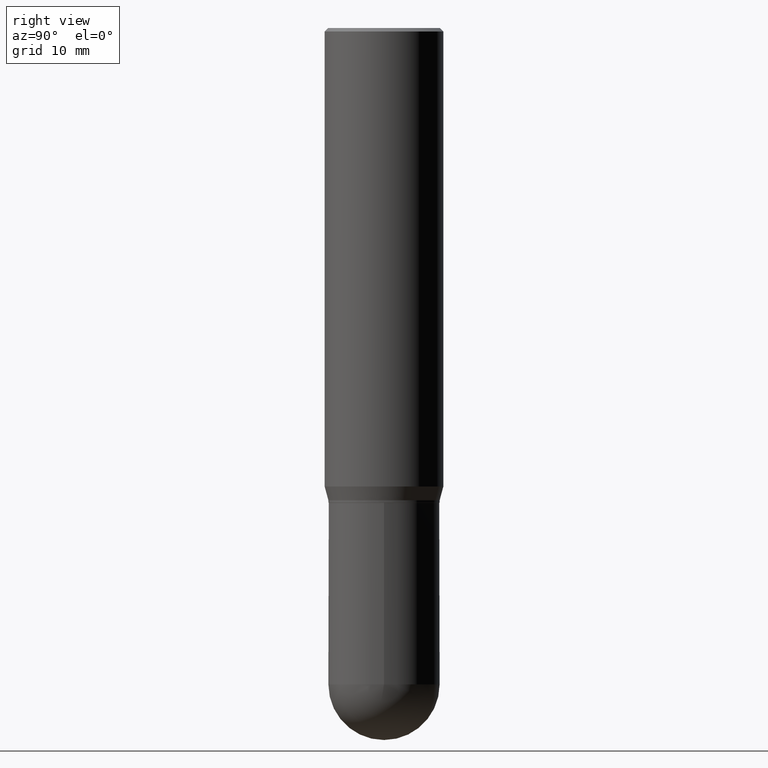
[diagram: clean part render]
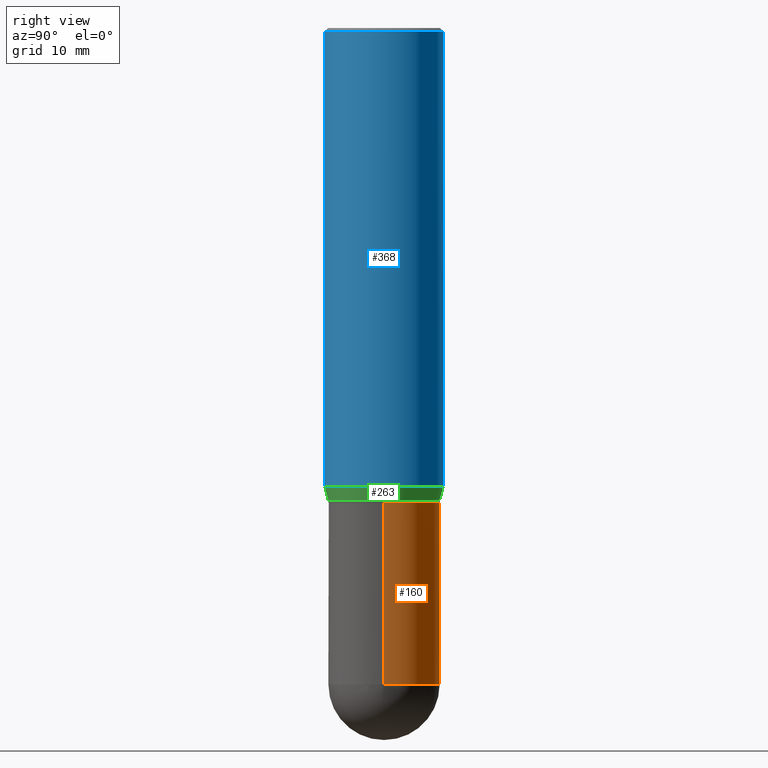
[diagram: same view with three faces highlighted in distinct colors, each labeled with its STEP entity id]
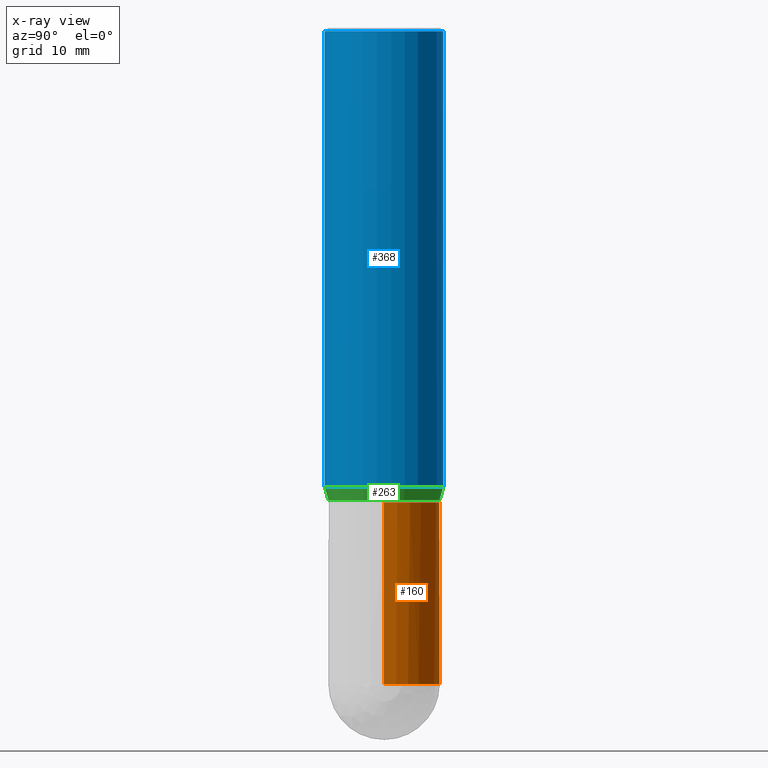
[diagram: x-ray of the same camera — body ghosted, the three highlighted faces saturated]
A machine part, right view with three faces highlighted in distinct colors.
The next image is the same camera in x-ray (body ghosted, the three faces saturated) — at least one of them is partly hidden behind the body in this view.
Their STEP definitions:

[orange] entity #160 — the highlighted cylindrical surface (partial cylindrical patch) has radius 5.9538 mm, axis along (-0, 0, 1).
#19 = DIRECTION ( 'NONE',  ( 1.000000000000000000, -6.982962677686269077E-15, 0.000000000000000000 ) ) ;
#49 = VERTEX_POINT ( 'NONE', #468 ) ;
#73 = FACE_OUTER_BOUND ( 'NONE', #187, .T. ) ;
#76 = AXIS2_PLACEMENT_3D ( 'NONE', #421, #463, #305 ) ;
#91 = DIRECTION ( 'NONE',  ( -2.445468806185136597E-29, 3.491481338843145583E-15, 1.000000000000000000 ) ) ;
#119 = VECTOR ( 'NONE', #292, 39.37007874015748143 ) ;
#125 = EDGE_CURVE ( 'NONE', #49, #494, #216, .T. ) ;
#128 = DIRECTION ( 'NONE',  ( -2.445468806185136597E-29, 3.491481338843145583E-15, 1.000000000000000000 ) ) ;
#135 = CARTESIAN_POINT ( 'NONE',  ( 0.2344000000000000250, -9.956308185845112006E-15, -2.765600000000000502 ) ) ;
#157 = AXIS2_PLACEMENT_3D ( 'NONE', #323, #91, #170 ) ;
#160 = ADVANCED_FACE ( 'NONE', ( #73 ), #230, .T. ) ;
#161 = CARTESIAN_POINT ( 'NONE',  ( 6.763188530385615666E-29, -9.656040790704605504E-15, -2.765600000000000502 ) ) ;
#169 = ORIENTED_EDGE ( 'NONE', *, *, #396, .T. ) ;
#170 = DIRECTION ( 'NONE',  ( 1.000000000000000000, -6.982962677686269077E-15, 0.000000000000000000 ) ) ;
#187 = EDGE_LOOP ( 'NONE', ( #341, #380, #358, #220, #169 ) ) ;
#191 = CIRCLE ( 'NONE', #157, 0.2344000000000000250 ) ;
#216 = CIRCLE ( 'NONE', #76, 0.2343999999999999972 ) ;
#217 = VERTEX_POINT ( 'NONE', #351 ) ;
#220 = ORIENTED_EDGE ( 'NONE', *, *, #290, .F. ) ;
#230 = CYLINDRICAL_SURFACE ( 'NONE', #294, 0.2344000000000000250 ) ;
#231 = EDGE_CURVE ( 'NONE', #217, #494, #274, .T. ) ;
#247 = LINE ( 'NONE', #485, #119 ) ;
#268 = AXIS2_PLACEMENT_3D ( 'NONE', #161, #128, #19 ) ;
#274 = LINE ( 'NONE', #399, #340 ) ;
#283 = VERTEX_POINT ( 'NONE', #439 ) ;
#290 = EDGE_CURVE ( 'NONE', #490, #49, #247, .T. ) ;
#292 = DIRECTION ( 'NONE',  ( -2.445468806185136877E-29, 3.491481338843145188E-15, 1.000000000000000000 ) ) ;
#294 = AXIS2_PLACEMENT_3D ( 'NONE', #320, #361, #398 ) ;
#296 = CIRCLE ( 'NONE', #268, 0.2344000000000000250 ) ;
#305 = DIRECTION ( 'NONE',  ( 1.000000000000000000, -6.982962677686265922E-15, 0.000000000000000000 ) ) ;
#320 = CARTESIAN_POINT ( 'NONE',  ( 0.000000000000000000, 0.000000000000000000, 0.000000000000000000 ) ) ;
#323 = CARTESIAN_POINT ( 'NONE',  ( 6.763188530385615666E-29, -9.656040790704605504E-15, -2.765600000000000502 ) ) ;
#340 = VECTOR ( 'NONE', #397, 39.37007874015748143 ) ;
#341 = ORIENTED_EDGE ( 'NONE', *, *, #422, .T. ) ;
#351 = CARTESIAN_POINT ( 'NONE',  ( -0.2344000000000000250, -6.653989561573773518E-15, -2.765600000000000502 ) ) ;
#358 = ORIENTED_EDGE ( 'NONE', *, *, #125, .F. ) ;
#361 = DIRECTION ( 'NONE',  ( -2.445468806185136597E-29, 3.491481338843145583E-15, 1.000000000000000000 ) ) ;
#380 = ORIENTED_EDGE ( 'NONE', *, *, #231, .T. ) ;
#396 = EDGE_CURVE ( 'NONE', #490, #283, #296, .T. ) ;
#397 = DIRECTION ( 'NONE',  ( -2.445468806185136877E-29, 3.491481338843145188E-15, 1.000000000000000000 ) ) ;
#398 = DIRECTION ( 'NONE',  ( 1.000000000000000000, -6.982962677686266711E-15, 4.876176775795936353E-29 ) ) ;
#399 = CARTESIAN_POINT ( 'NONE',  ( -0.2344000000000000250, 1.665512172621675013E-15, -1.152998385155750104E-29 ) ) ;
#421 = CARTESIAN_POINT ( 'NONE',  ( 4.890937612370273754E-29, -6.982962677686291954E-15, -2.000000000000000444 ) ) ;
#422 = EDGE_CURVE ( 'NONE', #283, #217, #191, .T. ) ;
#439 = CARTESIAN_POINT ( 'NONE',  ( 1.636806451649728555E-15, 0.2343999999999903938, -2.765600000000001391 ) ) ;
#462 = CARTESIAN_POINT ( 'NONE',  ( -0.2343999999999999972, -6.653989561573773518E-15, -2.000000000000000444 ) ) ;
#463 = DIRECTION ( 'NONE',  ( -2.445468806185136597E-29, 3.491481338843145583E-15, 1.000000000000000000 ) ) ;
#468 = CARTESIAN_POINT ( 'NONE',  ( 0.2343999999999999972, -8.619769129335952076E-15, -2.000000000000000444 ) ) ;
#485 = CARTESIAN_POINT ( 'NONE',  ( 0.2344000000000000250, -1.636806451649661108E-15, 1.142975836246567575E-29 ) ) ;
#490 = VERTEX_POINT ( 'NONE', #135 ) ;
#494 = VERTEX_POINT ( 'NONE', #462 ) ;

[blue] entity #368 — the highlighted cylindrical surface (partial cylindrical patch) has radius 6.35 mm, axis along (-0, 0, 1).
#8 = CIRCLE ( 'NONE', #470, 0.2500000000000000000 ) ;
#12 = DIRECTION ( 'NONE',  ( -6.982962677686265922E-15, -1.000000000000000000, 3.491087603084271144E-15 ) ) ;
#16 = EDGE_CURVE ( 'NONE', #51, #308, #266, .T. ) ;
#24 = DIRECTION ( 'NONE',  ( -2.445743750396045645E-29, 3.491087603084271538E-15, 1.000000000000000000 ) ) ;
#31 = LINE ( 'NONE', #378, #428 ) ;
#40 = EDGE_CURVE ( 'NONE', #436, #51, #99, .T. ) ;
#50 = FACE_OUTER_BOUND ( 'NONE', #74, .T. ) ;
#51 = VERTEX_POINT ( 'NONE', #386 ) ;
#53 = CARTESIAN_POINT ( 'NONE',  ( 0.000000000000000000, 0.000000000000000000, 0.000000000000000000 ) ) ;
#74 = EDGE_LOOP ( 'NONE', ( #478, #98, #349, #374 ) ) ;
#98 = ORIENTED_EDGE ( 'NONE', *, *, #509, .T. ) ;
#99 = LINE ( 'NONE', #311, #233 ) ;
#108 = CARTESIAN_POINT ( 'NONE',  ( 3.668615625594108632E-31, -5.236631404626464376E-17, -0.01500000000000016424 ) ) ;
#115 = CARTESIAN_POINT ( 'NONE',  ( 4.724638880243287230E-29, -6.744013235726904476E-15, -1.931780007401925792 ) ) ;
#144 = DIRECTION ( 'NONE',  ( -6.982962677686265922E-15, -1.000000000000000000, 3.491643216902136408E-15 ) ) ;
#156 = CARTESIAN_POINT ( 'NONE',  ( 1.776356839400297402E-15, 0.2499999999999932832, -1.931780007401926680 ) ) ;
#165 = AXIS2_PLACEMENT_3D ( 'NONE', #53, #369, #12 ) ;
#174 = VERTEX_POINT ( 'NONE', #156 ) ;
#181 = DIRECTION ( 'NONE',  ( -2.445743750396045645E-29, 3.491087603084271538E-15, 1.000000000000000000 ) ) ;
#200 = AXIS2_PLACEMENT_3D ( 'NONE', #108, #389, #144 ) ;
#208 = CARTESIAN_POINT ( 'NONE',  ( 1.776356839400298191E-15, 0.2499999999999999167, -0.01500000000000103681 ) ) ;
#233 = VECTOR ( 'NONE', #181, 39.37007874015748143 ) ;
#266 = CIRCLE ( 'NONE', #200, 0.2500000000000000000 ) ;
#273 = EDGE_CURVE ( 'NONE', #436, #174, #8, .T. ) ;
#276 = DIRECTION ( 'NONE',  ( -2.445743750396045645E-29, 3.491087603084271144E-15, 1.000000000000000000 ) ) ;
#308 = VERTEX_POINT ( 'NONE', #208 ) ;
#311 = CARTESIAN_POINT ( 'NONE',  ( -1.745740669421566480E-15, -0.2500000000000000000, 8.727719007710677859E-16 ) ) ;
#349 = ORIENTED_EDGE ( 'NONE', *, *, #16, .F. ) ;
#368 = ADVANCED_FACE ( 'NONE', ( #50 ), #373, .T. ) ;
#369 = DIRECTION ( 'NONE',  ( -2.445743750396045645E-29, 3.491087603084271144E-15, 1.000000000000000000 ) ) ;
#373 = CYLINDRICAL_SURFACE ( 'NONE', #165, 0.2500000000000000000 ) ;
#374 = ORIENTED_EDGE ( 'NONE', *, *, #40, .F. ) ;
#378 = CARTESIAN_POINT ( 'NONE',  ( 1.776356839400250267E-15, 0.2500000000000000000, -8.727719007710677859E-16 ) ) ;
#386 = CARTESIAN_POINT ( 'NONE',  ( -1.745740669421565889E-15, -0.2500000000000000555, -0.01499999999999929168 ) ) ;
#389 = DIRECTION ( 'NONE',  ( -2.445743750396045645E-29, 3.491087603084271144E-15, 1.000000000000000000 ) ) ;
#428 = VECTOR ( 'NONE', #24, 39.37007874015748143 ) ;
#435 = DIRECTION ( 'NONE',  ( -6.982962677686265922E-15, -1.000000000000000000, 3.278217592397115862E-15 ) ) ;
#436 = VERTEX_POINT ( 'NONE', #455 ) ;
#455 = CARTESIAN_POINT ( 'NONE',  ( -1.745740669421519149E-15, -0.2500000000000067168, -1.931780007401924903 ) ) ;
#470 = AXIS2_PLACEMENT_3D ( 'NONE', #115, #276, #435 ) ;
#478 = ORIENTED_EDGE ( 'NONE', *, *, #273, .T. ) ;
#509 = EDGE_CURVE ( 'NONE', #174, #308, #31, .T. ) ;

[green] entity #263 — the highlighted conical surface has half-angle 15 deg.
#7 = VERTEX_POINT ( 'NONE', #25 ) ;
#8 = CIRCLE ( 'NONE', #470, 0.2500000000000000000 ) ;
#25 = CARTESIAN_POINT ( 'NONE',  ( -1.636806451649611410E-15, -0.2344000000000068529, -1.989999999999999547 ) ) ;
#54 = VERTEX_POINT ( 'NONE', #222 ) ;
#80 = LINE ( 'NONE', #199, #175 ) ;
#88 = CARTESIAN_POINT ( 'NONE',  ( 4.867030063288131795E-29, -6.947264330137701209E-15, -1.990000000000000435 ) ) ;
#92 = ORIENTED_EDGE ( 'NONE', *, *, #503, .F. ) ;
#96 = CONICAL_SURFACE ( 'NONE', #226, 0.2343999999999999417, 0.2617993877991500740 ) ;
#109 = LINE ( 'NONE', #264, #209 ) ;
#115 = CARTESIAN_POINT ( 'NONE',  ( 4.724638880243287230E-29, -6.744013235726904476E-15, -1.931780007401925792 ) ) ;
#152 = CARTESIAN_POINT ( 'NONE',  ( 4.867030063288131795E-29, -6.947264330137701209E-15, -1.990000000000000435 ) ) ;
#155 = DIRECTION ( 'NONE',  ( -6.982962677686265133E-15, -1.000000000000000000, 3.496392483358699500E-15 ) ) ;
#156 = CARTESIAN_POINT ( 'NONE',  ( 1.776356839400297402E-15, 0.2499999999999932832, -1.931780007401926680 ) ) ;
#164 = DIRECTION ( 'NONE',  ( -2.445743750396045645E-29, 3.491087603084271144E-15, 1.000000000000000000 ) ) ;
#172 = ORIENTED_EDGE ( 'NONE', *, *, #324, .T. ) ;
#174 = VERTEX_POINT ( 'NONE', #156 ) ;
#175 = VECTOR ( 'NONE', #245, 39.37007874015748854 ) ;
#199 = CARTESIAN_POINT ( 'NONE',  ( 1.665512172621722937E-15, 0.2343999999999930028, -1.990000000000001101 ) ) ;
#209 = VECTOR ( 'NONE', #215, 39.37007874015748854 ) ;
#210 = ORIENTED_EDGE ( 'NONE', *, *, #286, .T. ) ;
#212 = DIRECTION ( 'NONE',  ( -6.982962677686265133E-15, -1.000000000000000000, 3.496392483358699500E-15 ) ) ;
#215 = DIRECTION ( 'NONE',  ( -1.807323732225328562E-15, -0.2588190451025179639, 0.9659258262890690894 ) ) ;
#222 = CARTESIAN_POINT ( 'NONE',  ( 1.720934506011010366E-15, 0.2343999999999930028, -1.990000000000001101 ) ) ;
#226 = AXIS2_PLACEMENT_3D ( 'NONE', #152, #318, #155 ) ;
#234 = CIRCLE ( 'NONE', #400, 0.2343999999999999417 ) ;
#245 = DIRECTION ( 'NONE',  ( 1.839019923739598738E-15, 0.2588190451025247363, 0.9659258262890673130 ) ) ;
#263 = ADVANCED_FACE ( 'NONE', ( #356 ), #96, .T. ) ;
#264 = CARTESIAN_POINT ( 'NONE',  ( -1.636806451649611410E-15, -0.2344000000000068529, -1.989999999999999547 ) ) ;
#273 = EDGE_CURVE ( 'NONE', #436, #174, #8, .T. ) ;
#276 = DIRECTION ( 'NONE',  ( -2.445743750396045645E-29, 3.491087603084271144E-15, 1.000000000000000000 ) ) ;
#286 = EDGE_CURVE ( 'NONE', #54, #174, #80, .T. ) ;
#318 = DIRECTION ( 'NONE',  ( -2.445743750396045645E-29, 3.491087603084271144E-15, 1.000000000000000000 ) ) ;
#324 = EDGE_CURVE ( 'NONE', #7, #54, #234, .T. ) ;
#356 = FACE_OUTER_BOUND ( 'NONE', #372, .T. ) ;
#372 = EDGE_LOOP ( 'NONE', ( #172, #210, #505, #92 ) ) ;
#400 = AXIS2_PLACEMENT_3D ( 'NONE', #88, #164, #212 ) ;
#435 = DIRECTION ( 'NONE',  ( -6.982962677686265922E-15, -1.000000000000000000, 3.278217592397115862E-15 ) ) ;
#436 = VERTEX_POINT ( 'NONE', #455 ) ;
#455 = CARTESIAN_POINT ( 'NONE',  ( -1.745740669421519149E-15, -0.2500000000000067168, -1.931780007401924903 ) ) ;
#470 = AXIS2_PLACEMENT_3D ( 'NONE', #115, #276, #435 ) ;
#503 = EDGE_CURVE ( 'NONE', #7, #436, #109, .T. ) ;
#505 = ORIENTED_EDGE ( 'NONE', *, *, #273, .F. ) ;